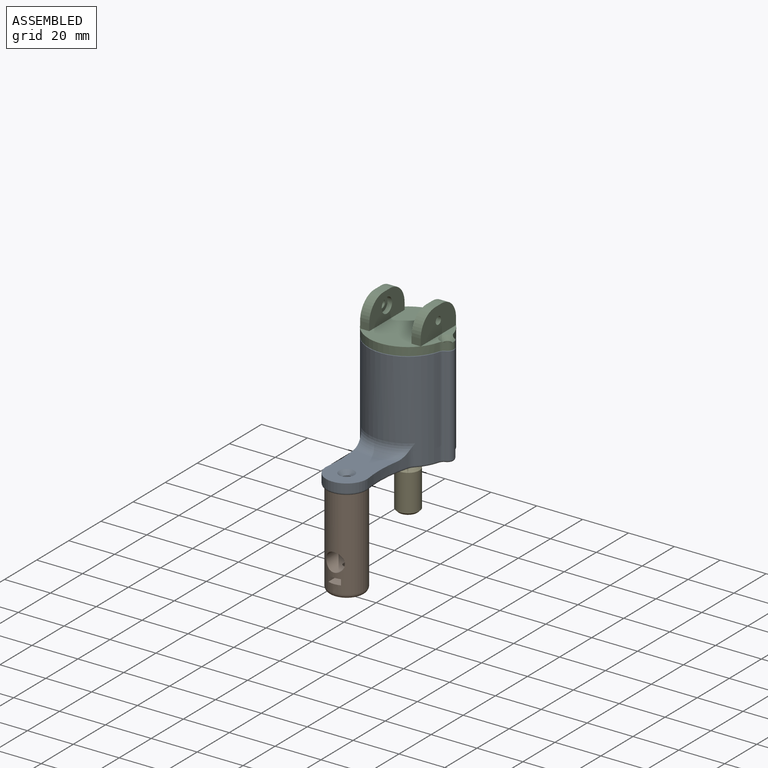
[diagram: assembled view]
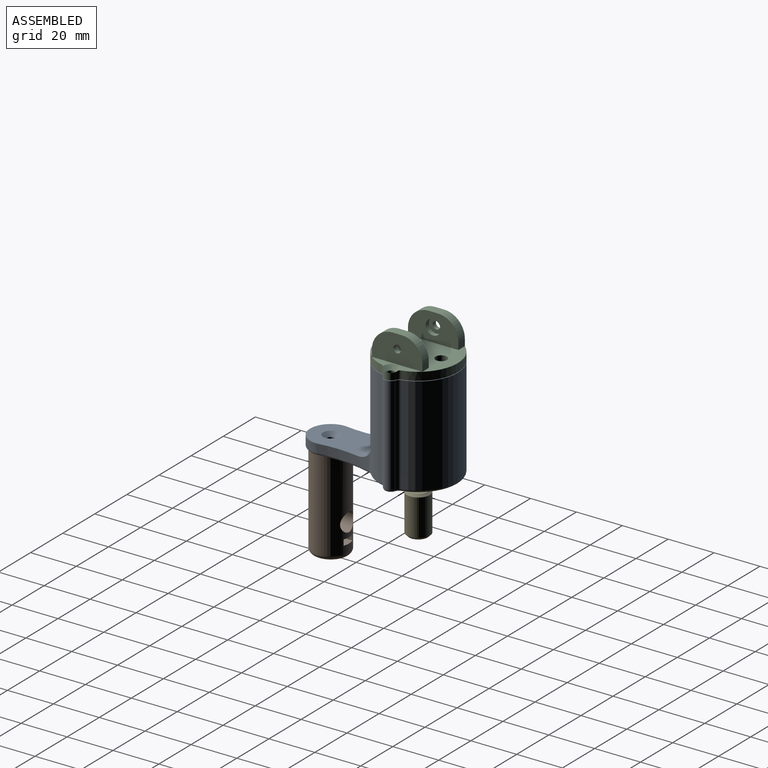
[diagram: assembled view, second angle]
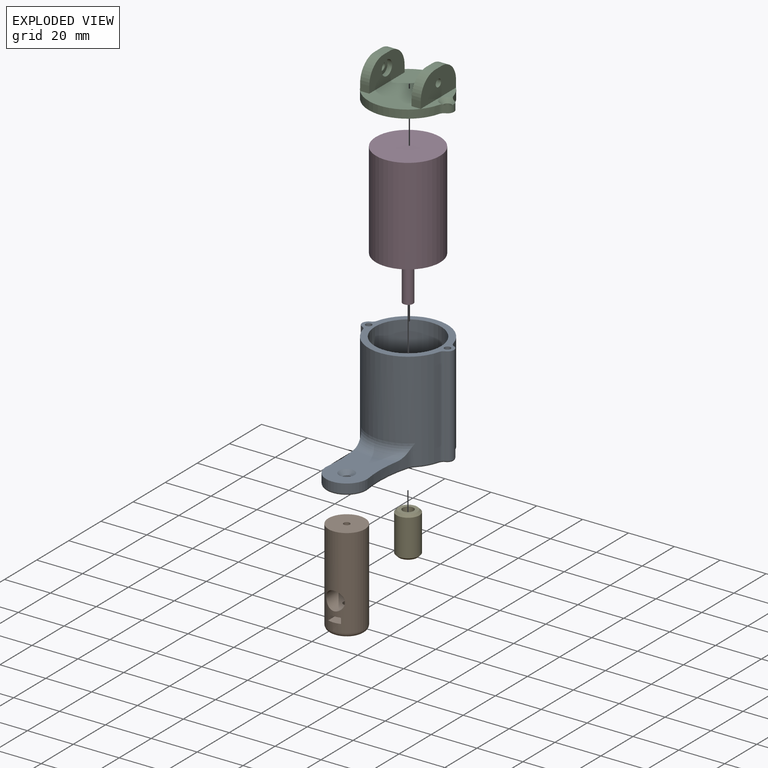
[diagram: exploded view]
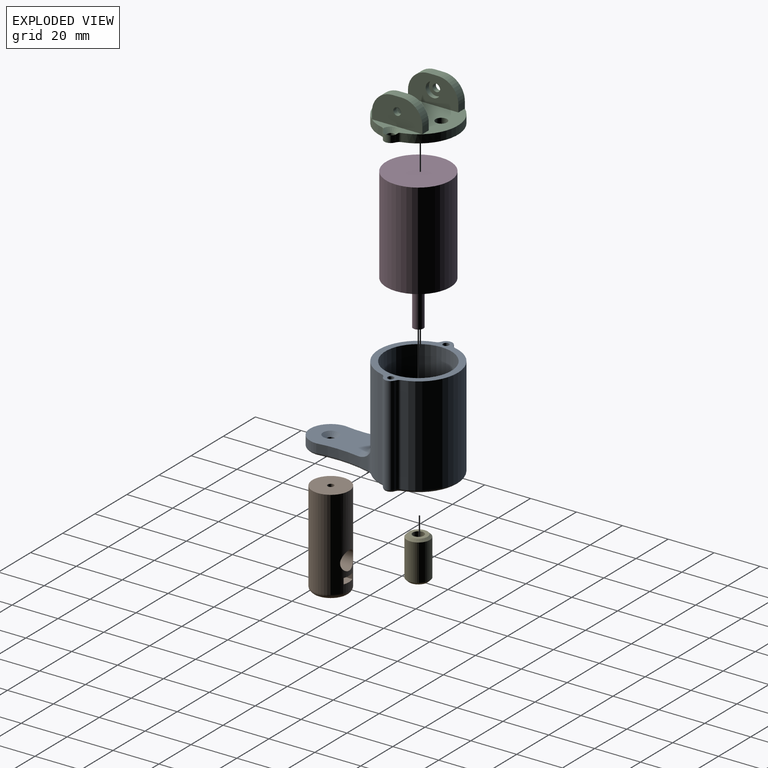
[diagram: exploded view, second angle]
ASSEMBLY  parts=5 mates=4
PART A: 42 faces, bbox 40.5x66.6x44 mm
  f0: cylinder r=17.2mm len=43mm, axis (0,0,-1), area 1720.4mm2, adj f5,f15,f16,f17,f18,f21,f30,f33
  f1: cylinder r=2.8mm len=43mm, axis (0,0,-1), area 294.1mm2, adj f5,f18,f19,f29
  f2: cylinder r=17.2mm len=43mm, axis (0,0,-1), area 1950.9mm2, adj f5,f19,f20,f25
  f3: cylinder r=14.4mm len=43mm, axis (0,0,-1), area 3890.5mm2, adj f5,f8
  f4: cylinder r=2.8mm len=43mm, axis (0,0,-1), area 294.1mm2, adj f5,f20,f21,f26
  f5: plane 40x34.4mm, normal (0,0,1), area 293.5mm2, adj f0,f1,f2,f3,f4,f18,f19,f20
  f6: plane 62.4x38mm, normal (0,0,-1), area 1210.8mm2, adj f7,f13,f14,f22,f24,f25,f26,f27
  f7: cylinder r=5.1mm len=10.2mm, axis (0,0,-1), area 32mm2, adj f6,f8
  f8: plane 28.8x28.8mm, normal (0,0,1), area 562.1mm2, adj f3,f7,f13,f14
  f9: cylinder r=55mm len=23.51mm, axis (0,0,-1), area 94.2mm2, adj f11,f12,f15,f16,f37
  f10: cylinder r=55mm len=23.51mm, axis (0,0,-1), area 94.2mm2, adj f11,f12,f15,f17,f34
  f11: cylinder r=9mm len=18mm, axis (0,0,-1), area 107.4mm2, adj f9,f10,f12,f36
  f12: plane 27.01x18.46mm, normal (0,0,1), area 377.3mm2, adj f9,f10,f11,f15,f23
  f13: cylinder r=1.1mm len=2.2mm, axis (0,0,-1), area 6.9mm2, adj f6,f8
  f14: cylinder r=1.1mm len=2.2mm, axis (0,0,-1), area 6.9mm2, adj f6,f8
  f15: torus R=22.2mm, axis (0,0,1), area 172.6mm2, adj f0,f9,f10,f12,f16,f17
  f16: cylinder r=5mm len=8.8mm, axis (0,0,-1), area 19.6mm2, adj f0,f9,f15,f35
  f17: cylinder r=5mm len=8.8mm, axis (0,0,-1), area 19.6mm2, adj f0,f10,f15,f32
  f18: cylinder r=2.4mm len=43mm, axis (0,0,1), area 100mm2, adj f0,f1,f5,f31
  f19: cylinder r=2.4mm len=43mm, axis (0,0,1), area 100mm2, adj f1,f2,f5,f27
  f20: cylinder r=2.4mm len=43mm, axis (0,0,1), area 100mm2, adj f2,f4,f5,f24
  f21: cylinder r=2.4mm len=43mm, axis (0,0,1), area 100mm2, adj f0,f4,f5,f28
  f22: cylinder r=1.65mm len=3.3mm, axis (0,0,1), area 32mm2, adj f6,f23
  f23: cone r=1.65mm half-angle=45deg, axis (0,0,1), area 38.1mm2, adj f12,f22
  f24: torus R=3.4mm, axis (0,0,1), area 4.2mm2, adj f6,f20,f25,f26
  f25: torus R=16.2mm, axis (0,0,1), area 69.8mm2, adj f2,f6,f24,f27
  f26: torus R=1.8mm, axis (0,0,1), area 9.3mm2, adj f4,f6,f24,f28
  f27: torus R=3.4mm, axis (0,0,1), area 4.2mm2, adj f6,f19,f25,f29
  f28: torus R=3.4mm, axis (0,0,1), area 4.2mm2, adj f6,f21,f26,f30
  f29: torus R=1.8mm, axis (0,0,1), area 9.3mm2, adj f1,f6,f27,f31
  f30: torus R=16.2mm, axis (0,0,1), area 14.7mm2, adj f0,f6,f28,f32
  f31: torus R=3.4mm, axis (0,0,1), area 4.2mm2, adj f6,f18,f29,f33
  f32: torus R=6mm, axis (0,0,1), area 4.5mm2, adj f6,f17,f30,f34
  f33: torus R=16.2mm, axis (0,0,1), area 14.7mm2, adj f0,f6,f31,f35
  f34: torus R=56mm, axis (0,0,1), area 37.5mm2, adj f6,f10,f32,f36
  f35: torus R=6mm, axis (0,0,1), area 4.5mm2, adj f6,f16,f33,f37
  f36: torus R=8mm, axis (0,0,1), area 42.5mm2, adj f6,f11,f34,f37
  f37: torus R=56mm, axis (0,0,1), area 37.5mm2, adj f6,f9,f35,f36
  f38: cylinder r=1.35mm len=20mm, axis (0,0,1), area 169.6mm2, adj f5,f39
  f39: cone r=0mm half-angle=59deg, axis (0,0,1), area 6.7mm2, adj f38
  f40: cylinder r=1.35mm len=20mm, axis (0,0,1), area 169.6mm2, adj f5,f41
  f41: cone r=0mm half-angle=59deg, axis (0,0,1), area 6.7mm2, adj f40
PART B: 13 faces, bbox 17.3x17.3x41.4 mm
  f0: cylinder r=8mm len=39.4mm, axis (0,0,-1), area 1845.6mm2, adj f2,f3,f4,f5,f6,f7,f12
  f1: plane 12x12mm, normal (0,0,1), area 106mm2, adj f9,f12
  f2: plane 16x16mm, normal (0,0,-1), area 195.3mm2, adj f0,f10
  f3: plane 15.03x2.5mm, normal (-1,0,0), area 37.6mm2, adj f0,f4,f6
  f4: plane 16x5.5mm, normal (0,0,-1), area 79.2mm2, adj f0,f3,f5,f9
  f5: plane 15.03x2.5mm, normal (1,0,0), area 37.6mm2, adj f0,f4,f6
  f6: plane 16x5.5mm, normal (0,0,1), area 79.2mm2, adj f0,f3,f5,f8
  f7: cylinder r=4.05mm len=16mm, axis (0,-1,0), area 372.4mm2, adj f0,f8
  f8: cylinder r=1.5mm len=3mm, axis (0,0,1), area 20.2mm2, adj f6,f7
  f9: cylinder r=1.5mm len=5.45mm, axis (0,0,1), area 51.4mm2, adj f1,f4
  f10: cylinder r=1.35mm len=20mm, axis (0,0,-1), area 169.6mm2, adj f2,f11
  f11: plane 2.7x2.7mm, normal (0,0,-1), area 5.7mm2, adj f10
  f12: torus R=6mm, axis (0,0,1), area 143.6mm2, adj f0,f1
PART C: 37 faces, bbox 41.1x34.4x15.6 mm
  f0: plane 34.4x26.45mm, normal (0,0,1), area 614.1mm2, adj f9,f10,f16,f18,f19,f20,f23,f24
  f1: plane 22x3.97mm, normal (0,0,1), area 43.1mm2, adj f4,f5,f9,f10,f15,f22
  f2: plane 22x3.97mm, normal (0,0,1), area 43.1mm2, adj f7,f8,f9,f10,f13,f17
  f3: cylinder r=2.8mm len=5.18mm, axis (0,0,-1), area 20.1mm2, adj f4,f5,f11,f15
  f4: cylinder r=2.8mm len=3.6mm, axis (0,0,1), area 8.8mm2, adj f1,f3,f9,f11,f15
  f5: cylinder r=2.8mm len=3.6mm, axis (0,0,1), area 8.8mm2, adj f1,f3,f10,f11,f15
  f6: cylinder r=2.8mm len=5.18mm, axis (0,0,-1), area 20.1mm2, adj f7,f8,f11,f13
  f7: cylinder r=2.8mm len=3.6mm, axis (0,0,1), area 8.8mm2, adj f2,f6,f9,f11,f13
  f8: cylinder r=2.8mm len=3.6mm, axis (0,0,1), area 8.8mm2, adj f2,f6,f10,f11,f13
  f9: cylinder r=17.2mm len=33.22mm, axis (0,0,-1), area 162.1mm2, adj f0,f1,f2,f4,f7,f11
  f10: cylinder r=17.2mm len=33.22mm, axis (0,0,-1), area 162.1mm2, adj f0,f1,f2,f5,f8,f11
  f11: plane 40x34.4mm, normal (0,0,-1), area 920mm2, adj f3,f4,f5,f6,f7,f8,f9,f10
  f12: cylinder r=1.65mm len=3.3mm, axis (0,0,1), area 19.6mm2, adj f11,f13
  f13: cone r=1.65mm half-angle=45deg, axis (0,0,1), area 30.9mm2, adj f2,f6,f7,f8,f12
  f14: cylinder r=1.65mm len=3.3mm, axis (0,0,1), area 19.6mm2, adj f11,f15
  f15: cone r=1.65mm half-angle=45deg, axis (0,0,1), area 30.9mm2, adj f1,f3,f4,f5,f14
  f16: cylinder r=2.5mm len=5mm, axis (0,0,1), area 56.5mm2, adj f0,f11
  f17: plane 22x12mm, normal (-1,0,0), area 220.7mm2, adj f2,f18,f20,f21,f30,f35,f36
  f18: plane 4x3mm, normal (0,-1,0), area 12mm2, adj f0,f17,f19,f35
  f19: plane 22x12mm, normal (1,0,0), area 196.1mm2, adj f0,f18,f20,f21,f32,f35,f36
  f20: plane 4x3mm, normal (0,1,0), area 12mm2, adj f0,f17,f19,f36
  f21: plane 4x4mm, normal (0,0,1), area 16mm2, adj f17,f19,f35,f36
  f22: plane 22x12mm, normal (1,0,0), area 220.7mm2, adj f1,f23,f25,f26,f27,f33,f34
  f23: plane 4x3mm, normal (0,1,0), area 12mm2, adj f0,f22,f24,f33
  f24: plane 22x12mm, normal (-1,0,0), area 196.1mm2, adj f0,f23,f25,f26,f29,f33,f34
  f25: plane 4x3mm, normal (0,-1,0), area 12mm2, adj f0,f22,f24,f34
  f26: plane 4x4mm, normal (0,0,1), area 16mm2, adj f22,f24,f33,f34
  f27: cylinder r=1.65mm len=3.3mm, axis (-1,0,0), area 20.7mm2, adj f22,f28
  f28: plane 6.5x6.5mm, normal (-1,0,0), area 24.6mm2, adj f27,f29
  f29: cylinder r=3.25mm len=6.5mm, axis (-1,0,0), area 40.8mm2, adj f24,f28
  f30: cylinder r=1.65mm len=3.3mm, axis (1,0,0), area 20.7mm2, adj f17,f31
  f31: plane 6.5x6.5mm, normal (1,0,0), area 24.6mm2, adj f30,f32
  f32: cylinder r=3.25mm len=6.5mm, axis (1,0,0), area 40.8mm2, adj f19,f31
  f33: cylinder r=9mm len=9mm, axis (1,0,0), area 56.5mm2, adj f22,f23,f24,f26
  f34: cylinder r=9mm len=9mm, axis (-1,0,0), area 56.5mm2, adj f22,f24,f25,f26
  f35: cylinder r=9mm len=9mm, axis (-1,0,0), area 56.5mm2, adj f17,f18,f19,f21
  f36: cylinder r=9mm len=9mm, axis (1,0,0), area 56.5mm2, adj f17,f19,f20,f21
PART D: 11 faces, bbox 28x28x61.5 mm
  f0: cylinder r=14mm len=42mm, axis (0,0,-1), area 3694.5mm2, adj f1,f2
  f1: plane 28x28mm, normal (0,0,1), area 529.6mm2, adj f0,f3,f7,f9
  f2: plane 28x28mm, normal (0,0,-1), area 615.8mm2, adj f0
  f3: cylinder r=5mm len=10mm, axis (0,0,-1), area 69.1mm2, adj f1,f4
  f4: plane 10x10mm, normal (0,0,1), area 62.6mm2, adj f3,f5
  f5: cylinder r=2.25mm len=17.25mm, axis (0,0,-1), area 243.9mm2, adj f4,f6
  f6: plane 4.5x4.5mm, normal (0,0,1), area 15.9mm2, adj f5
  f7: cylinder r=1.1mm len=4mm, axis (0,0,1), area 27.6mm2, adj f1,f8
  f8: cone r=0mm half-angle=59deg, axis (0,0,1), area 4.4mm2, adj f7
  f9: cylinder r=1.1mm len=4mm, axis (0,0,1), area 27.6mm2, adj f1,f10
  f10: cone r=0mm half-angle=59deg, axis (0,0,1), area 4.4mm2, adj f9
PART E: 11 faces, bbox 10x10x18 mm
  f0: cylinder r=5mm len=16mm, axis (0,0,-1), area 502.7mm2, adj f9,f10
  f1: plane 8x8mm, normal (0,0,1), area 32.2mm2, adj f3,f9
  f2: plane 8x8mm, normal (0,0,-1), area 42.2mm2, adj f5,f10
  f3: cylinder r=2.4mm len=11.4mm, axis (0,0,1), area 171.9mm2, adj f1,f7
  f4: plane 3.6x3.6mm, normal (0,0,1), area 10.2mm2, adj f7
  f5: cylinder r=1.6mm len=4.4mm, axis (0,0,-1), area 44.2mm2, adj f2,f8
  f6: plane 2x2mm, normal (0,0,-1), area 3.1mm2, adj f8
  f7: cone r=1.8mm half-angle=45deg, axis (0,0,1), area 11.2mm2, adj f3,f4
  f8: cone r=1mm half-angle=45deg, axis (0,0,-1), area 6.9mm2, adj f5,f6
  f9: cone r=4mm half-angle=45deg, axis (0,0,-1), area 40mm2, adj f0,f1
  f10: cone r=5mm half-angle=45deg, axis (0,0,1), area 40mm2, adj f0,f2
PLACE A t=(-30.77,-10.39,-10.58)mm fixed
PLACE B rot(axis=(1,0,0),180deg) t=(-30.77,-48.59,-10.58)mm
PLACE C t=(-30.77,-10.39,33.62)mm
PLACE D rot(axis=(1,0,0),180deg) t=(-30.77,-10.39,32.42)mm
PLACE E rot(axis=(0,0,1),131.6deg) t=(-30.77,-10.39,-35.03)mm
MATE fastened D.f9 <-> A.f13  axis (0,0,-1) through (-22.77,-10.39,-9.58)mm
MATE revolute E.f0 <-> D.f0  axis (0,0,1) through (-30.77,-10.39,-29.03)mm
MATE fastened B.f0 <-> A.f11  axis (0,0,1) through (-30.77,-48.59,-10.58)mm
MATE fastened C.f6 <-> A.f4  axis (0,0,-1) through (-47.97,-10.39,33.62)mm
